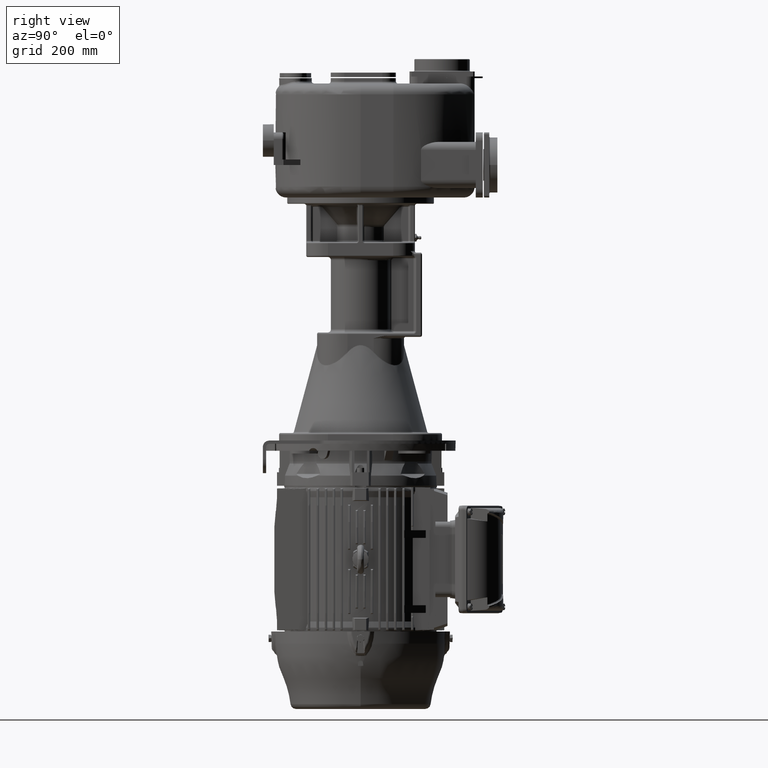
[diagram: clean part render]
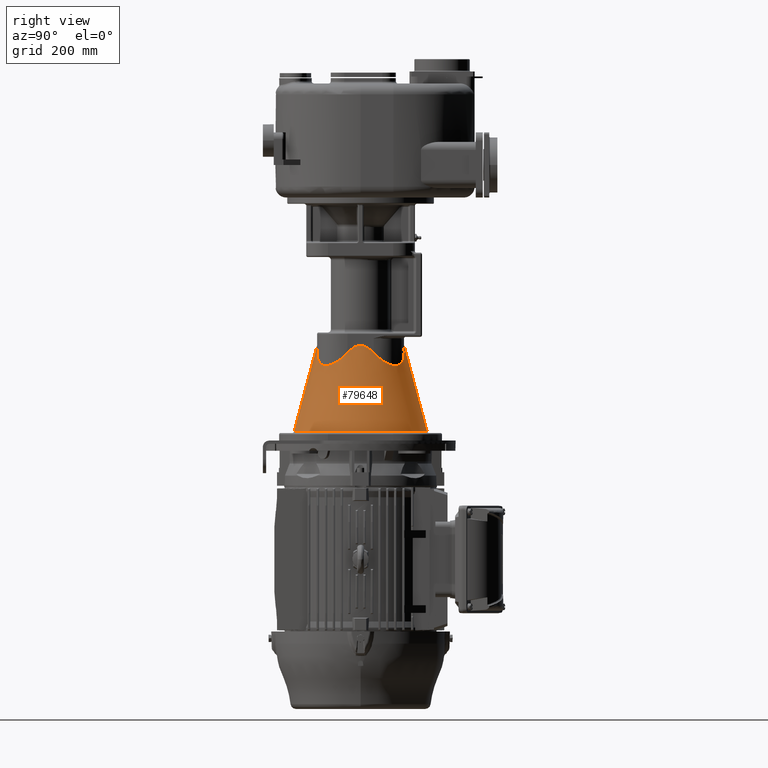
[diagram: same view with one face highlighted and labeled with its STEP entity id]
A machine part, right view. The second image highlights one B-rep face of the part: STEP entity #79648.
In plain terms, the highlighted conical surface has half-angle 15 deg.
Its self-contained STEP definition (entity closure, byte-faithful):
#24044=CARTESIAN_POINT('',(-1.898481759786E-14,1.58E2,-5.362764571353E2));
#24045=DIRECTION('',(0.E0,0.E0,1.E0));
#24046=DIRECTION('',(2.376209689192E-1,-9.713579541703E-1,0.E0));
#24047=AXIS2_PLACEMENT_3D('',#24044,#24045,#24046);
#24085=CARTESIAN_POINT('',(-3.750284373163E-14,2.381022225205E2,
-3.773500949365E2));
#24388=DIRECTION('',(0.E0,2.588190451061E-1,9.659258262881E-1));
#24389=VECTOR('',#24388,1.645326772238E2);
#24390=CARTESIAN_POINT('',(0.E0,3.531358707165E1,-5.362764571353E2));
#24391=LINE('',#24390,#24389);
#24392=CARTESIAN_POINT('',(2.319506396796E1,7.778373711082E1,
-3.900399315817E2));
#24393=CARTESIAN_POINT('',(2.288359843523E1,7.778661370874E1,
-3.897067289652E2));
#24394=CARTESIAN_POINT('',(2.226863818762E1,7.779220502480E1,
-3.890611301452E2));
#24395=CARTESIAN_POINT('',(2.137324140060E1,7.780009239633E1,
-3.881557259198E2));
#24396=CARTESIAN_POINT('',(2.050004827563E1,7.780753607654E1,
-3.873058945816E2));
#24397=CARTESIAN_POINT('',(1.964856931573E1,7.781455187850E1,
-3.865090249327E2));
#24398=CARTESIAN_POINT('',(1.881811140830E1,7.782115765770E1,
-3.857623363367E2));
#24399=CARTESIAN_POINT('',(1.800717068037E1,7.782737707550E1,
-3.850625046679E2));
#24400=CARTESIAN_POINT('',(1.721497222698E1,7.783322727207E1,
-3.844070239507E2));
#24401=CARTESIAN_POINT('',(1.644044440833E1,7.783872706077E1,
-3.837932733923E2));
#24402=CARTESIAN_POINT('',(1.568268036622E1,7.784389316103E1,
-3.832189200329E2));
#24403=CARTESIAN_POINT('',(1.494077587742E1,7.784874167591E1,
-3.826817647559E2));
#24404=CARTESIAN_POINT('',(1.421386435068E1,7.785328777749E1,
-3.821797665888E2));
#24405=CARTESIAN_POINT('',(1.350111279408E1,7.785754575579E1,
-3.817110299790E2));
#24406=CARTESIAN_POINT('',(1.280171576461E1,7.786152905448E1,
-3.812737936328E2));
#24407=CARTESIAN_POINT('',(1.211489612809E1,7.786525027638E1,
-3.808664241492E2));
#24408=CARTESIAN_POINT('',(1.143990248715E1,7.786872119480E1,
-3.804874079932E2));
#24409=CARTESIAN_POINT('',(1.077600792649E1,7.787195280823E1,
-3.801353446267E2));
#24410=CARTESIAN_POINT('',(1.012250753636E1,7.787495539918E1,
-3.798089394529E2));
#24411=CARTESIAN_POINT('',(9.478717047014E0,7.787773853977E1,
-3.795069980713E2));
#24412=CARTESIAN_POINT('',(8.843971320534E0,7.788031110969E1,
-3.792284208210E2));
#24413=CARTESIAN_POINT('',(8.217622980455E0,7.788268131483E1,
-3.789721977943E2));
#24414=CARTESIAN_POINT('',(7.599041007341E0,7.788485669848E1,
-3.787374042576E2));
#24415=CARTESIAN_POINT('',(6.987610053467E0,7.788684419868E1,
-3.785231965037E2));
#24416=CARTESIAN_POINT('',(6.382728527638E0,7.788865017662E1,
-3.783288077016E2));
#24417=CARTESIAN_POINT('',(5.783807710785E0,7.789028041059E1,
-3.781535446081E2));
#24418=CARTESIAN_POINT('',(5.190269569584E0,7.789174011402E1,
-3.779967841122E2));
#24419=CARTESIAN_POINT('',(4.601547002466E0,7.789303394111E1,
-3.778579709856E2));
#24420=CARTESIAN_POINT('',(4.017084441943E0,7.789416600345E1,
-3.777366151512E2));
#24421=CARTESIAN_POINT('',(3.436319602490E0,7.789513989709E1,
-3.776322874809E2));
#24422=CARTESIAN_POINT('',(2.858749675755E0,7.789595869338E1,
-3.775446265706E2));
#24423=CARTESIAN_POINT('',(2.283741555897E0,7.789662515704E1,
-3.774733127190E2));
#24424=CARTESIAN_POINT('',(1.710935328609E0,7.789714119506E1,
-3.774181163803E2));
#24425=CARTESIAN_POINT('',(1.139637366501E0,7.789750873704E1,
-3.773788219682E2));
#24426=CARTESIAN_POINT('',(5.691455433598E-1,7.789772876202E1,
-3.773553004476E2));
#24427=CARTESIAN_POINT('',(1.896066888692E-1,7.789777746899E1,
-3.773500950132E2));
#24428=CARTESIAN_POINT('',(2.926700974624E-14,7.789777747946E1,
-3.773500949365E2));
#24430=CARTESIAN_POINT('',(8.021626288916E1,1.348049360320E2,
-3.900399315817E2));
#24431=CARTESIAN_POINT('',(8.022007583366E1,1.343920820538E2,
-3.904815983195E2));
#24432=CARTESIAN_POINT('',(8.021860118358E1,1.335713561968E2,
-3.913481293245E2));
#24433=CARTESIAN_POINT('',(8.019013601445E1,1.323569917910E2,
-3.925973797957E2));
#24434=CARTESIAN_POINT('',(8.013644375145E1,1.311590206354E2,
-3.937981059423E2));
#24435=CARTESIAN_POINT('',(8.005852826009E1,1.299779153036E2,
-3.949514131168E2));
#24436=CARTESIAN_POINT('',(7.995738203444E1,1.288139593924E2,
-3.960585546237E2));
#24437=CARTESIAN_POINT('',(7.983395245576E1,1.276672081526E2,
-3.971209356112E2));
#24438=CARTESIAN_POINT('',(7.968916954858E1,1.265378098182E2,
-3.981398092186E2));
#24439=CARTESIAN_POINT('',(7.952392668494E1,1.254258013408E2,
-3.991164715815E2));
#24440=CARTESIAN_POINT('',(7.933908760887E1,1.243312028670E2,
-4.000521727107E2));
#24441=CARTESIAN_POINT('',(7.913548336963E1,1.232539926920E2,
-4.009481417145E2));
#24442=CARTESIAN_POINT('',(7.891391194714E1,1.221941154165E2,
-4.018055798083E2));
#24443=CARTESIAN_POINT('',(7.867513804119E1,1.211514849533E2,
-4.026256588856E2));
#24444=CARTESIAN_POINT('',(7.841989245632E1,1.201259858542E2,
-4.034095212799E2));
#24445=CARTESIAN_POINT('',(7.814887208069E1,1.191174765600E2,
-4.041582781104E2));
#24446=CARTESIAN_POINT('',(7.786273983987E1,1.181257918931E2,
-4.048730081957E2));
#24447=CARTESIAN_POINT('',(7.756212477343E1,1.171507451513E2,
-4.055547576539E2));
#24448=CARTESIAN_POINT('',(7.724762220147E1,1.161921302838E2,
-4.062045393188E2));
#24449=CARTESIAN_POINT('',(7.691979397759E1,1.152497240137E2,
-4.068233321848E2));
#24450=CARTESIAN_POINT('',(7.657916883215E1,1.143232878749E2,
-4.074120809636E2));
#24451=CARTESIAN_POINT('',(7.622624278928E1,1.134125701563E2,
-4.079716957382E2));
#24452=CARTESIAN_POINT('',(7.586147970929E1,1.125173079079E2,
-4.085030516029E2));
#24453=CARTESIAN_POINT('',(7.548531192713E1,1.116372288387E2,
-4.090069884960E2));
#24454=CARTESIAN_POINT('',(7.509814073538E1,1.107720526622E2,
-4.094843113467E2));
#24455=CARTESIAN_POINT('',(7.470033703046E1,1.099214927347E2,
-4.099357899876E2));
#24456=CARTESIAN_POINT('',(7.429224196354E1,1.090852575256E2,
-4.103621591879E2));
#24457=CARTESIAN_POINT('',(7.387416763673E1,1.082630520444E2,
-4.107641187192E2));
#24458=CARTESIAN_POINT('',(7.344639779184E1,1.074545791527E2,
-4.111423334560E2));
#24459=CARTESIAN_POINT('',(7.300918875674E1,1.066595411478E2,
-4.114974335082E2));
#24460=CARTESIAN_POINT('',(7.256277002854E1,1.058776406176E2,
-4.118300145917E2));
#24461=CARTESIAN_POINT('',(7.210734499484E1,1.051085815588E2,
-4.121406381824E2));
#24462=CARTESIAN_POINT('',(7.164309166646E1,1.043520704148E2,
-4.124298317485E2));
#24463=CARTESIAN_POINT('',(7.117016343013E1,1.036078170866E2,
-4.126980889941E2));
#24464=CARTESIAN_POINT('',(7.068868977130E1,1.028755358547E2,
-4.129458701021E2));
#24465=CARTESIAN_POINT('',(7.019877694195E1,1.021549461660E2,
-4.131736020527E2));
#24466=CARTESIAN_POINT('',(6.970050908823E1,1.014457739536E2,
-4.133816789439E2));
#24467=CARTESIAN_POINT('',(6.919394846980E1,1.007477517973E2,
-4.135704622508E2));
#24468=CARTESIAN_POINT('',(6.867913635031E1,1.000606199527E2,
-4.137402810254E2));
#24469=CARTESIAN_POINT('',(6.815609356815E1,9.938412693078E1,
-4.138914321379E2));
#24470=CARTESIAN_POINT('',(6.762482117481E1,9.871803015419E1,
-4.140241805170E2));
#24471=CARTESIAN_POINT('',(6.708530126628E1,9.806209685983E1,
-4.141387592692E2));
#24472=CARTESIAN_POINT('',(6.653749756530E1,9.741610455726E1,
-4.142353701226E2));
#24473=CARTESIAN_POINT('',(6.598135605583E1,9.677984166623E1,
-4.143141835617E2));
#24474=CARTESIAN_POINT('',(6.541680547209E1,9.615310803480E1,
-4.143753388366E2));
#24475=CARTESIAN_POINT('',(6.484375783916E1,9.553571545899E1,
-4.144189441105E2));
#24476=CARTESIAN_POINT('',(6.426210909684E1,9.492748831756E1,
-4.144450765255E2));
#24477=CARTESIAN_POINT('',(6.367173979467E1,9.432826426090E1,
-4.144537822714E2));
#24478=CARTESIAN_POINT('',(6.307251563731E1,9.373789473972E1,
-4.144450766414E2));
#24479=CARTESIAN_POINT('',(6.246428820818E1,9.315624561196E1,
-4.144189443220E2));
#24480=CARTESIAN_POINT('',(6.184689508691E1,9.258319737604E1,
-4.143753391059E2));
#24481=CARTESIAN_POINT('',(6.122016082625E1,9.201864614922E1,
-4.143141838462E2));
#24482=CARTESIAN_POINT('',(6.058389736598E1,9.146250408619E1,
-4.142353703885E2));
#24483=CARTESIAN_POINT('',(5.993790450299E1,9.091469986739E1,
-4.141387594946E2));
#24484=CARTESIAN_POINT('',(5.928197071536E1,9.037517952529E1,
-4.140241806838E2));
#24485=CARTESIAN_POINT('',(5.861587339906E1,8.984390668601E1,
-4.138914322126E2));
#24486=CARTESIAN_POINT('',(5.793937977482E1,8.932086343712E1,
-4.137402809673E2));
#24487=CARTESIAN_POINT('',(5.725224738088E1,8.880605092036E1,
-4.135704620417E2));
#24488=CARTESIAN_POINT('',(5.655422474E1,8.829948997601E1,-4.133816785771E2));
#24489=CARTESIAN_POINT('',(5.584505204860E1,8.780122182033E1,
-4.131736015130E2));
#24490=CARTESIAN_POINT('',(5.512446189010E1,8.731130871724E1,
-4.129458693676E2));
#24491=CARTESIAN_POINT('',(5.439218011244E1,8.682983475561E1,
-4.126980880189E2));
#24492=CARTESIAN_POINT('',(5.364792629013E1,8.635690627270E1,
-4.124298305278E2));
#24493=CARTESIAN_POINT('',(5.289141469286E1,8.589265274272E1,
-4.121406367110E2));
#24494=CARTESIAN_POINT('',(5.212235518029E1,8.543722752476E1,
-4.118300128528E2));
#24495=CARTESIAN_POINT('',(5.134045418111E1,8.499080862250E1,
-4.114974314750E2));
#24496=CARTESIAN_POINT('',(5.054541571261E1,8.455359943554E1,
-4.111423311106E2));
#24497=CARTESIAN_POINT('',(4.973694240352E1,8.412582948089E1,
-4.107641160656E2));
#24498=CARTESIAN_POINT('',(4.891473657126E1,8.370775509363E1,
-4.103621562419E2));
#24499=CARTESIAN_POINT('',(4.807850103110E1,8.329965998896E1,
-4.099357867455E2));
#24500=CARTESIAN_POINT('',(4.722794080122E1,8.290185627228E1,
-4.094843078101E2));
#24501=CARTESIAN_POINT('',(4.636276437545E1,8.251468510358E1,
-4.090069846821E2));
#24502=CARTESIAN_POINT('',(4.548268511107E1,8.213851737616E1,
-4.085030475332E2));
#24503=CARTESIAN_POINT('',(4.458742271125E1,8.177375437551E1,
-4.079716914306E2));
#24504=CARTESIAN_POINT('',(4.367670488140E1,8.142082843279E1,
-4.074120764364E2));
#24505=CARTESIAN_POINT('',(4.275026869425E1,8.108020341402E1,
-4.068233274734E2));
#24506=CARTESIAN_POINT('',(4.180786240940E1,8.075237532963E1,
-4.062045344431E2));
#24507=CARTESIAN_POINT('',(4.084924755735E1,8.043787290743E1,
-4.055547526327E2));
#24508=CARTESIAN_POINT('',(3.987420090456E1,8.013725801228E1,
-4.048730030810E2));
#24509=CARTESIAN_POINT('',(3.888251641242E1,7.985112596312E1,
-4.041582729671E2));
#24510=CARTESIAN_POINT('',(3.787400731828E1,7.958010577833E1,
-4.034095161344E2));
#24511=CARTESIAN_POINT('',(3.684850842585E1,7.932486037902E1,
-4.026256537488E2));
#24512=CARTESIAN_POINT('',(3.580587830311E1,7.908608668047E1,
-4.018055747946E2));
#24513=CARTESIAN_POINT('',(3.474600148284E1,7.886451547431E1,
-4.009481369324E2));
#24514=CARTESIAN_POINT('',(3.366879173903E1,7.866091142924E1,
-4.000521681580E2));
#24515=CARTESIAN_POINT('',(3.257419371901E1,7.847607253471E1,
-3.991164672969E2));
#24516=CARTESIAN_POINT('',(3.146218589589E1,7.831082986321E1,
-3.981398053975E2));
#24517=CARTESIAN_POINT('',(3.033278825323E1,7.816604712562E1,
-3.971209323196E2));
#24518=CARTESIAN_POINT('',(2.918603778747E1,7.804261769641E1,
-3.960585519696E2));
#24519=CARTESIAN_POINT('',(2.802208235506E1,7.794147156256E1,
-3.949514108588E2));
#24520=CARTESIAN_POINT('',(2.684097725984E1,7.786355613549E1,
-3.937981038554E2));
#24521=CARTESIAN_POINT('',(2.564300680926E1,7.780986394241E1,
-3.925973783691E2));
#24522=CARTESIAN_POINT('',(2.442864300406E1,7.778139881212E1,
-3.913481284834E2));
#24523=CARTESIAN_POINT('',(2.360791766869E1,7.777992416688E1,
-3.904815980262E2));
#24524=CARTESIAN_POINT('',(2.319506396796E1,7.778373711082E1,
-3.900399315817E2));
#24526=CARTESIAN_POINT('',(8.021626288916E1,1.811950639679E2,
-3.900399315817E2));
#24527=CARTESIAN_POINT('',(8.021333414240E1,1.808779517766E2,
-3.897006882385E2));
#24528=CARTESIAN_POINT('',(8.020764450838E1,1.802519947013E2,
-3.890437755973E2));
#24529=CARTESIAN_POINT('',(8.019962846198E1,1.793411783943E2,
-3.881237381848E2));
#24530=CARTESIAN_POINT('',(8.019207146435E1,1.784533469403E2,
-3.872611802570E2));
#24531=CARTESIAN_POINT('',(8.018495987113E1,1.775883583960E2,
-3.864536913616E2));
#24532=CARTESIAN_POINT('',(8.017827145508E1,1.767450909241E2,
-3.856979586973E2));
#24533=CARTESIAN_POINT('',(8.017198303159E1,1.759221657894E2,
-3.849906701178E2));
#24534=CARTESIAN_POINT('',(8.016607580253E1,1.751186853536E2,
-3.843291074846E2));
#24535=CARTESIAN_POINT('',(8.016052992694E1,1.743335295908E2,
-3.837105216463E2));
#24536=CARTESIAN_POINT('',(8.015532766168E1,1.735657437250E2,
-3.831324589751E2));
#24537=CARTESIAN_POINT('',(8.015045203977E1,1.728143682111E2,
-3.825926052502E2));
#24538=CARTESIAN_POINT('',(8.014588711932E1,1.720784906755E2,
-3.820888207217E2));
#24539=CARTESIAN_POINT('',(8.014161787749E1,1.713572314723E2,
-3.816191189022E2));
#24540=CARTESIAN_POINT('',(8.013763019648E1,1.706497419955E2,
-3.811816579458E2));
#24541=CARTESIAN_POINT('',(8.013391085805E1,1.699552036087E2,
-3.807747323357E2));
#24542=CARTESIAN_POINT('',(8.013044751593E1,1.692728247173E2,
-3.803967641229E2));
#24543=CARTESIAN_POINT('',(8.012722868766E1,1.686018402283E2,
-3.800462961166E2));
#24544=CARTESIAN_POINT('',(8.012424366697E1,1.679415089626E2,
-3.797219841319E2));
#24545=CARTESIAN_POINT('',(8.012148249469E1,1.672911115978E2,
-3.794225903709E2));
#24546=CARTESIAN_POINT('',(8.011893594853E1,1.666499491646E2,
-3.791469776350E2));
#24547=CARTESIAN_POINT('',(8.011659552540E1,1.660173415225E2,
-3.788941039393E2));
#24548=CARTESIAN_POINT('',(8.011445342717E1,1.653926258478E2,
-3.786630175811E2));
#24549=CARTESIAN_POINT('',(8.011250252864E1,1.647751556090E2,
-3.784528527145E2));
#24550=CARTESIAN_POINT('',(8.011073629741E1,1.641642994020E2,
-3.782628250190E2));
#24551=CARTESIAN_POINT('',(8.010914881924E1,1.635594388295E2,
-3.780922278655E2));
#24552=CARTESIAN_POINT('',(8.010773478302E1,1.629599674262E2,
-3.779404290709E2));
#24553=CARTESIAN_POINT('',(8.010648947203E1,1.623652894245E2,
-3.778068679428E2));
#24554=CARTESIAN_POINT('',(8.010540874931E1,1.617748185946E2,
-3.776910526450E2));
#24555=CARTESIAN_POINT('',(8.010448905520E1,1.611879770962E2,
-3.775925579219E2));
#24556=CARTESIAN_POINT('',(8.010372729881E1,1.606041946906E2,
-3.775110227639E2));
#24557=CARTESIAN_POINT('',(8.010312091235E1,1.600229070438E2,
-3.774461488333E2));
#24558=CARTESIAN_POINT('',(8.010266786131E1,1.594435546589E2,
-3.773976991553E2));
#24559=CARTESIAN_POINT('',(8.010236663806E1,1.588655818261E2,
-3.773654970161E2));
#24560=CARTESIAN_POINT('',(8.010221625494E1,1.582884355718E2,
-3.773494251277E2));
#24561=CARTESIAN_POINT('',(8.010221625482E1,1.577115646258E2,
-3.773494251246E2));
#24562=CARTESIAN_POINT('',(8.010236663787E1,1.571344183717E2,
-3.773654970074E2));
#24563=CARTESIAN_POINT('',(8.010266786112E1,1.565564455393E2,
-3.773976991413E2));
#24564=CARTESIAN_POINT('',(8.010312091220E1,1.559770931551E2,
-3.774461488140E2));
#24565=CARTESIAN_POINT('',(8.010372729867E1,1.553958055091E2,
-3.775110227392E2));
#24566=CARTESIAN_POINT('',(8.010448905501E1,1.548120231045E2,
-3.775925578914E2));
#24567=CARTESIAN_POINT('',(8.010540874894E1,1.542251816072E2,
-3.776910526082E2));
#24568=CARTESIAN_POINT('',(8.010648947153E1,1.536347107785E2,
-3.778068678997E2));
#24569=CARTESIAN_POINT('',(8.010773478250E1,1.530400327783E2,
-3.779404290218E2));
#24570=CARTESIAN_POINT('',(8.010914881873E1,1.524405613769E2,
-3.780922278103E2));
#24571=CARTESIAN_POINT('',(8.011073629689E1,1.518357008066E2,
-3.782628249573E2));
#24572=CARTESIAN_POINT('',(8.011250252807E1,1.512248446019E2,
-3.784528526461E2));
#24573=CARTESIAN_POINT('',(8.011445342648E1,1.506073743654E2,
-3.786630175055E2));
#24574=CARTESIAN_POINT('',(8.011659552457E1,1.499826586930E2,
-3.788941038561E2));
#24575=CARTESIAN_POINT('',(8.011893594766E1,1.493500510537E2,
-3.791469775443E2));
#24576=CARTESIAN_POINT('',(8.012148249378E1,1.487088886238E2,
-3.794225902724E2));
#24577=CARTESIAN_POINT('',(8.012424366601E1,1.480584912625E2,
-3.797219840249E2));
#24578=CARTESIAN_POINT('',(8.012722868660E1,1.473981600004E2,
-3.800462960007E2));
#24579=CARTESIAN_POINT('',(8.013044751475E1,1.467271755153E2,
-3.803967639977E2));
#24580=CARTESIAN_POINT('',(8.013391085682E1,1.460447966275E2,
-3.807747322011E2));
#24581=CARTESIAN_POINT('',(8.013763019522E1,1.453502582451E2,
-3.811816578011E2));
#24582=CARTESIAN_POINT('',(8.014161787613E1,1.446427687731E2,
-3.816191187466E2));
#24583=CARTESIAN_POINT('',(8.014588711781E1,1.439215095754E2,
-3.820888205541E2));
#24584=CARTESIAN_POINT('',(8.015045203806E1,1.431856320453E2,
-3.825926050700E2));
#24585=CARTESIAN_POINT('',(8.015532765978E1,1.424342565351E2,
-3.831324587832E2));
#24586=CARTESIAN_POINT('',(8.016052992509E1,1.416664706718E2,
-3.837105214439E2));
#24587=CARTESIAN_POINT('',(8.016607580076E1,1.408813149176E2,
-3.843291072671E2));
#24588=CARTESIAN_POINT('',(8.017198302953E1,1.400778345062E2,
-3.849906698695E2));
#24589=CARTESIAN_POINT('',(8.017827145315E1,1.392549093551E2,
-3.856979584539E2));
#24590=CARTESIAN_POINT('',(8.018495986813E1,1.384116419514E2,
-3.864536910420E2));
#24591=CARTESIAN_POINT('',(8.019207146239E1,1.375466532612E2,
-3.872611800646E2));
#24592=CARTESIAN_POINT('',(8.019962845759E1,1.366588220491E2,
-3.881237377461E2));
#24593=CARTESIAN_POINT('',(8.020764450428E1,1.357480057202E2,
-3.890437751591E2));
#24594=CARTESIAN_POINT('',(8.021333414088E1,1.351220483974E2,
-3.897006880530E2));
#24595=CARTESIAN_POINT('',(8.021626288916E1,1.348049360320E2,
-3.900399315817E2));
#24597=CARTESIAN_POINT('',(2.319506396795E1,2.382162628892E2,
-3.900399315816E2));
#24598=CARTESIAN_POINT('',(2.360791789286E1,2.382200758331E2,
-3.904815982624E2));
#24599=CARTESIAN_POINT('',(2.442864363548E1,2.382186011847E2,
-3.913481291486E2));
#24600=CARTESIAN_POINT('',(2.564300785537E1,2.381901360250E2,
-3.925973794355E2));
#24601=CARTESIAN_POINT('',(2.684097878559E1,2.381364437833E2,
-3.937981053694E2));
#24602=CARTESIAN_POINT('',(2.802208420891E1,2.380585282975E2,
-3.949514126472E2));
#24603=CARTESIAN_POINT('',(2.918604006451E1,2.379573820870E2,
-3.960585541125E2));
#24604=CARTESIAN_POINT('',(3.033279143183E1,2.378339525051E2,
-3.971209352316E2));
#24605=CARTESIAN_POINT('',(3.146218969533E1,2.376891696152E2,
-3.981398087849E2));
#24606=CARTESIAN_POINT('',(3.257419812847E1,2.375239267699E2,
-3.991164711235E2));
#24607=CARTESIAN_POINT('',(3.366879668601E1,2.373390876893E2,
-4.000521723341E2));
#24608=CARTESIAN_POINT('',(3.474600689760E1,2.371354834512E2,
-4.009481413780E2));
#24609=CARTESIAN_POINT('',(3.580588412345E1,2.369139120474E2,
-4.018055794406E2));
#24610=CARTESIAN_POINT('',(3.684851458672E1,2.366751381512E2,
-4.026256585284E2));
#24611=CARTESIAN_POINT('',(3.787401375671E1,2.364198925574E2,
-4.034095209872E2));
#24612=CARTESIAN_POINT('',(3.888252306691E1,2.361488721846E2,
-4.041582778375E2));
#24613=CARTESIAN_POINT('',(3.987420771518E1,2.358627399568E2,
-4.048730079178E2));
#24614=CARTESIAN_POINT('',(4.084925446594E1,2.355621248953E2,
-4.055547573904E2));
#24615=CARTESIAN_POINT('',(4.180786935968E1,2.352476223220E2,
-4.062045390810E2));
#24616=CARTESIAN_POINT('',(4.275027563224E1,2.349197941041E2,
-4.068233319558E2));
#24617=CARTESIAN_POINT('',(4.367671175558E1,2.345791689716E2,
-4.074120807325E2));
#24618=CARTESIAN_POINT('',(4.458742947289E1,2.342262429366E2,
-4.079716955143E2));
#24619=CARTESIAN_POINT('',(4.548269171296E1,2.338614798674E2,
-4.085030513818E2));
#24620=CARTESIAN_POINT('',(4.636277077311E1,2.334853120968E2,
-4.090069882774E2));
#24621=CARTESIAN_POINT('',(4.722794695301E1,2.330981409115E2,
-4.094843111384E2));
#24622=CARTESIAN_POINT('',(4.807850689805E1,2.327003372061E2,
-4.099357897968E2));
#24623=CARTESIAN_POINT('',(4.891474211711E1,2.322922421416E2,
-4.103621590097E2));
#24624=CARTESIAN_POINT('',(4.973694759516E1,2.318741678238E2,
-4.107641185472E2));
#24625=CARTESIAN_POINT('',(5.054542052012E1,2.314463979685E2,
-4.111423333062E2));
#24626=CARTESIAN_POINT('',(5.134045857617E1,2.310091889118E2,
-4.114974333884E2));
#24627=CARTESIAN_POINT('',(5.212235913709E1,2.305627701714E2,
-4.118300144904E2));
#24628=CARTESIAN_POINT('',(5.289141818864E1,2.301073451467E2,
-4.121406380822E2));
#24629=CARTESIAN_POINT('',(5.364792930535E1,2.296430918411E2,
-4.124298316446E2));
#24630=CARTESIAN_POINT('',(5.439218263024E1,2.291701636135E2,
-4.126980888957E2));
#24631=CARTESIAN_POINT('',(5.512446389607E1,2.286886899378E2,
-4.129458700203E2));
#24632=CARTESIAN_POINT('',(5.584505353055E1,2.281987771513E2,
-4.131736019603E2));
#24633=CARTESIAN_POINT('',(5.655422568824E1,2.277005093427E2,
-4.133816788400E2));
#24634=CARTESIAN_POINT('',(5.725224778915E1,2.271939487743E2,
-4.135704621432E2));
#24635=CARTESIAN_POINT('',(5.793937963934E1,2.266791366618E2,
-4.137402809315E2));
#24636=CARTESIAN_POINT('',(5.861587271795E1,2.261560938445E2,
-4.138914320647E2));
#24637=CARTESIAN_POINT('',(5.928196948867E1,2.256248214638E2,
-4.140241804502E2));
#24638=CARTESIAN_POINT('',(5.993790273280E1,2.250853016060E2,
-4.141387592023E2));
#24639=CARTESIAN_POINT('',(6.058389505596E1,2.245374978976E2,
-4.142353700671E2));
#24640=CARTESIAN_POINT('',(6.122015799324E1,2.239813563595E2,
-4.143141835270E2));
#24641=CARTESIAN_POINT('',(6.184689172063E1,2.234168056968E2,
-4.143753388174E2));
#24642=CARTESIAN_POINT('',(6.246428433198E1,2.228437580353E2,
-4.144189440973E2));
#24643=CARTESIAN_POINT('',(6.307251140463E1,2.222621093662E2,
-4.144450765172E2));
#24644=CARTESIAN_POINT('',(6.367173548984E1,2.216717400440E2,
-4.144537822715E2));
#24645=CARTESIAN_POINT('',(6.426210500075E1,2.210725159050E2,
-4.144450766495E2));
#24646=CARTESIAN_POINT('',(6.484375420613E1,2.204642884021E2,
-4.144189443345E2));
#24647=CARTESIAN_POINT('',(6.541680241331E1,2.198468953161E2,
-4.143753391238E2));
#24648=CARTESIAN_POINT('',(6.598135356123E1,2.192201611509E2,
-4.143141838792E2));
#24649=CARTESIAN_POINT('',(6.653749559724E1,2.185838977346E2,
-4.142353704415E2));
#24650=CARTESIAN_POINT('',(6.708529980851E1,2.179379048916E2,
-4.141387595585E2));
#24651=CARTESIAN_POINT('',(6.762482019933E1,2.172819710557E2,
-4.140241807475E2));
#24652=CARTESIAN_POINT('',(6.815609305006E1,2.166158737344E2,
-4.138914322825E2));
#24653=CARTESIAN_POINT('',(6.867913626368E1,2.159393801667E2,
-4.137402810575E2));
#24654=CARTESIAN_POINT('',(6.919394878732E1,2.152522477779E2,
-4.135704621451E2));
#24655=CARTESIAN_POINT('',(6.970050978092E1,2.145542250822E2,
-4.133816786764E2));
#24656=CARTESIAN_POINT('',(7.019877797998E1,2.138450523380E2,
-4.131736016011E2));
#24657=CARTESIAN_POINT('',(7.068869112485E1,2.131244621265E2,
-4.129458694452E2));
#24658=CARTESIAN_POINT('',(7.117016506950E1,2.123921803825E2,
-4.126980881127E2));
#24659=CARTESIAN_POINT('',(7.164309356118E1,2.116479265563E2,
-4.124298306265E2));
#24660=CARTESIAN_POINT('',(7.210734711365E1,2.108914149318E2,
-4.121406368058E2));
#24661=CARTESIAN_POINT('',(7.256277234013E1,2.101223554123E2,
-4.118300129486E2));
#24662=CARTESIAN_POINT('',(7.300919122991E1,2.093404544438E2,
-4.114974315890E2));
#24663=CARTESIAN_POINT('',(7.344640039543E1,2.085454160257E2,
-4.111423312539E2));
#24664=CARTESIAN_POINT('',(7.387417033947E1,2.077369427495E2,
-4.107641162307E2));
#24665=CARTESIAN_POINT('',(7.429224473538E1,2.069147369144E2,
-4.103621564130E2));
#24666=CARTESIAN_POINT('',(7.470033984187E1,2.060785013848E2,
-4.099357869293E2));
#24667=CARTESIAN_POINT('',(7.509814355759E1,2.052279411729E2,
-4.094843080113E2));
#24668=CARTESIAN_POINT('',(7.548531473232E1,2.043627647509E2,
-4.090069848934E2));
#24669=CARTESIAN_POINT('',(7.586148247077E1,2.034826854780E2,
-4.085030477472E2));
#24670=CARTESIAN_POINT('',(7.622624548174E1,2.025874230704E2,
-4.079716916475E2));
#24671=CARTESIAN_POINT('',(7.657917143202E1,2.016767052397E2,
-4.074120766604E2));
#24672=CARTESIAN_POINT('',(7.691979646332E1,2.007502690375E2,
-4.068233276954E2));
#24673=CARTESIAN_POINT('',(7.724762455328E1,1.998078627556E2,
-4.062045346741E2));
#24674=CARTESIAN_POINT('',(7.756212697378E1,1.988492479303E2,
-4.055547528894E2));
#24675=CARTESIAN_POINT('',(7.786274187369E1,1.978742012867E2,
-4.048730033520E2));
#24676=CARTESIAN_POINT('',(7.814887393549E1,1.968825167765E2,
-4.041582732333E2));
#24677=CARTESIAN_POINT('',(7.841989412263E1,1.958740076995E2,
-4.034095164212E2));
#24678=CARTESIAN_POINT('',(7.867513951262E1,1.948485088791E2,
-4.026256541007E2));
#24679=CARTESIAN_POINT('',(7.891391322063E1,1.938058787567E2,
-4.018055751573E2));
#24680=CARTESIAN_POINT('',(7.913548444515E1,1.927460018878E2,
-4.009481372645E2));
#24681=CARTESIAN_POINT('',(7.933908849095E1,1.916687921824E2,
-4.000521685315E2));
#24682=CARTESIAN_POINT('',(7.952392738076E1,1.905741942472E2,
-3.991164677527E2));
#24683=CARTESIAN_POINT('',(7.968917007050E1,1.894621863801E2,
-3.981398058292E2));
#24684=CARTESIAN_POINT('',(7.983395282512E1,1.883327886678E2,
-3.971209326982E2));
#24685=CARTESIAN_POINT('',(7.995738225093E1,1.871860383318E2,
-3.960585524820E2));
#24686=CARTESIAN_POINT('',(8.005852839983E1,1.860220828447E2,
-3.949514113305E2));
#24687=CARTESIAN_POINT('',(8.013644383246E1,1.848409778422E2,
-3.937981044315E2));
#24688=CARTESIAN_POINT('',(8.019013604685E1,1.836430071675E2,
-3.925973787339E2));
#24689=CARTESIAN_POINT('',(8.021860118674E1,1.824286431771E2,
-3.913481286647E2));
#24690=CARTESIAN_POINT('',(8.022007583364E1,1.816079177242E2,
-3.904815980856E2));
#24691=CARTESIAN_POINT('',(8.021626288916E1,1.811950639679E2,
-3.900399315817E2));
#24693=CARTESIAN_POINT('',(-3.750284373163E-14,2.381022225205E2,
-3.773500949365E2));
#24694=CARTESIAN_POINT('',(1.896745422574E-1,2.381022225331E2,
-3.773500950281E2));
#24695=CARTESIAN_POINT('',(5.693488262776E-1,2.381022712695E2,
-3.773553041526E2));
#24696=CARTESIAN_POINT('',(1.140043849340E0,2.381024914542E2,
-3.773788424753E2));
#24697=CARTESIAN_POINT('',(1.711542665271E0,2.381028592559E2,
-3.774181647001E2));
#24698=CARTESIAN_POINT('',(2.284547715044E0,2.381033756572E2,
-3.774733997592E2));
#24699=CARTESIAN_POINT('',(2.859751028881E0,2.381040425819E2,
-3.775447629125E2));
#24700=CARTESIAN_POINT('',(3.437512051459E0,2.381048619338E2,
-3.776324833850E2));
#24701=CARTESIAN_POINT('',(4.018462860015E0,2.381058364720E2,
-3.777368804291E2));
#24702=CARTESIAN_POINT('',(4.603105374684E0,2.381069692647E2,
-3.778583149264E2));
#24703=CARTESIAN_POINT('',(5.192000970450E0,2.381082639030E2,
-3.779972153910E2));
#24704=CARTESIAN_POINT('',(5.785704225281E0,2.381097244899E2,
-3.781540711572E2));
#24705=CARTESIAN_POINT('',(6.384781267909E0,2.381113556708E2,
-3.783294366120E2));
#24706=CARTESIAN_POINT('',(6.989809093199E0,2.381131626490E2,
-3.785239338950E2));
#24707=CARTESIAN_POINT('',(7.601375353353E0,2.381151511918E2,
-3.787382551483E2));
#24708=CARTESIAN_POINT('',(8.220080527451E0,2.381173276481E2,
-3.789731659564E2));
#24709=CARTESIAN_POINT('',(8.846538777186E0,2.381196989443E2,
-3.792295086177E2));
#24710=CARTESIAN_POINT('',(9.481379892456E0,2.381222726076E2,
-3.795082062738E2));
#24711=CARTESIAN_POINT('',(1.012524996618E1,2.381250568264E2,
-3.798102670498E2));
#24712=CARTESIAN_POINT('',(1.077881278586E1,2.381280604612E2,
-3.801367886125E2));
#24713=CARTESIAN_POINT('',(1.144275120051E1,2.381312930635E2,
-3.804889631363E2));
#24714=CARTESIAN_POINT('',(1.211776862095E1,2.381347648933E2,
-3.808680827355E2));
#24715=CARTESIAN_POINT('',(1.280459038309E1,2.381384869248E2,
-3.812755451877E2));
#24716=CARTESIAN_POINT('',(1.350396618463E1,2.381424709016E2,
-3.817128609268E2));
#24717=CARTESIAN_POINT('',(1.421667139166E1,2.381467293959E2,
-3.821816599320E2));
#24718=CARTESIAN_POINT('',(1.494350957810E1,2.381512758179E2,
-3.826836997046E2));
#24719=CARTESIAN_POINT('',(1.568531172837E1,2.381561244215E2,
-3.832208715733E2));
#24720=CARTESIAN_POINT('',(1.644294238146E1,2.381612903400E2,
-3.837952118929E2));
#24721=CARTESIAN_POINT('',(1.721730339439E1,2.381667896337E2,
-3.844089145249E2));
#24722=CARTESIAN_POINT('',(1.800929944553E1,2.381726389749E2,
-3.850643068707E2));
#24723=CARTESIAN_POINT('',(1.881999944978E1,2.381788571217E2,
-3.857640032672E2));
#24724=CARTESIAN_POINT('',(1.965017538096E1,2.381854611581E2,
-3.865105024535E2));
#24725=CARTESIAN_POINT('',(2.050132968843E1,2.381924746995E2,
-3.873071223088E2));
#24726=CARTESIAN_POINT('',(2.137414882244E1,2.381999155059E2,
-3.881566314375E2));
#24727=CARTESIAN_POINT('',(2.226912468559E1,2.382077993722E2,
-3.890616373333E2));
#24728=CARTESIAN_POINT('',(2.288376610013E1,2.382133878399E2,
-3.897069083329E2));
#24729=CARTESIAN_POINT('',(2.319506396795E1,2.382162628892E2,
-3.900399315816E2));
#24731=DIRECTION('',(0.E0,-2.588190451061E-1,9.659258262881E-1));
#24732=VECTOR('',#24731,1.645326772238E2);
#24733=CARTESIAN_POINT('',(-7.030587247454E-14,2.806864129284E2,
-5.362764571353E2));
#24734=LINE('',#24733,#24732);
#24740=CARTESIAN_POINT('',(-1.898481759786E-14,1.58E2,-5.362764571353E2));
#24741=DIRECTION('',(0.E0,0.E0,1.E0));
#24742=DIRECTION('',(0.E0,-1.E0,0.E0));
#24743=AXIS2_PLACEMENT_3D('',#24740,#24741,#24742);
#46349=VERTEX_POINT('',#24085);
#46351=VERTEX_POINT('',#24729);
#46354=VERTEX_POINT('',#24526);
#46355=VERTEX_POINT('',#24595);
#46358=VERTEX_POINT('',#24392);
#46359=VERTEX_POINT('',#24428);
#46366=CARTESIAN_POINT('',(-7.030587247454E-14,2.806864129284E2,
-5.362764571353E2));
#46367=VERTEX_POINT('',#46366);
#46372=CARTESIAN_POINT('',(2.915286431326E1,3.882757693343E1,
-5.362764571353E2));
#46373=VERTEX_POINT('',#46372);
#46376=CARTESIAN_POINT('',(-1.187939024026E-14,3.531358707165E1,
-5.362764571353E2));
#46377=VERTEX_POINT('',#46376);
#79626=CARTESIAN_POINT('',(-1.898481759786E-14,1.58E2,-4.568129738237E2));
#79627=DIRECTION('',(0.E0,0.E0,-1.E0));
#79628=DIRECTION('',(0.E0,-1.E0,0.E0));
#79629=AXIS2_PLACEMENT_3D('',#79626,#79627,#79628);
#79630=CONICAL_SURFACE('',#79629,1.013942367472E2,1.5E1);
#79631=ORIENTED_EDGE('',*,*,#79596,.F.);
#79633=ORIENTED_EDGE('',*,*,#79632,.F.);
#79634=ORIENTED_EDGE('',*,*,#79606,.T.);
#79636=ORIENTED_EDGE('',*,*,#79635,.F.);
#79638=ORIENTED_EDGE('',*,*,#79637,.F.);
#79640=ORIENTED_EDGE('',*,*,#79639,.F.);
#79642=ORIENTED_EDGE('',*,*,#79641,.F.);
#79644=ORIENTED_EDGE('',*,*,#79643,.F.);
#79645=ORIENTED_EDGE('',*,*,#79611,.F.);
#79646=EDGE_LOOP('',(#79631,#79633,#79634,#79636,#79638,#79640,#79642,#79644,
#79645));
#79647=FACE_OUTER_BOUND('',#79646,.F.);
#79648=ADVANCED_FACE('',(#79647),#79630,.T.);
#24048=CIRCLE('',#24047,1.226864129284E2);
#24429=B_SPLINE_CURVE_WITH_KNOTS('',3,(#24392,#24393,#24394,#24395,#24396,
#24397,#24398,#24399,#24400,#24401,#24402,#24403,#24404,#24405,#24406,#24407,
#24408,#24409,#24410,#24411,#24412,#24413,#24414,#24415,#24416,#24417,#24418,
#24419,#24420,#24421,#24422,#24423,#24424,#24425,#24426,#24427,#24428),
.UNSPECIFIED.,.F.,.F.,(4,1,1,1,1,1,1,1,1,1,1,1,1,1,1,1,1,1,1,1,1,1,1,1,1,1,1,1,
1,1,1,1,1,1,4),(0.E0,2.941176470588E-2,5.882352941176E-2,8.823529411765E-2,
1.176470588235E-1,1.470588235294E-1,1.764705882353E-1,2.058823529412E-1,
2.352941176471E-1,2.647058823529E-1,2.941176470588E-1,3.235294117647E-1,
3.529411764706E-1,3.823529411765E-1,4.117647058824E-1,4.411764705882E-1,
4.705882352941E-1,5.E-1,5.294117647059E-1,5.588235294118E-1,5.882352941176E-1,
6.176470588235E-1,6.470588235294E-1,6.764705882353E-1,7.058823529412E-1,
7.352941176471E-1,7.647058823529E-1,7.941176470588E-1,8.235294117647E-1,
8.529411764706E-1,8.823529411765E-1,9.117647058824E-1,9.411764705882E-1,
9.705882352941E-1,1.E0),.UNSPECIFIED.);
#24525=B_SPLINE_CURVE_WITH_KNOTS('',3,(#24430,#24431,#24432,#24433,#24434,
#24435,#24436,#24437,#24438,#24439,#24440,#24441,#24442,#24443,#24444,#24445,
#24446,#24447,#24448,#24449,#24450,#24451,#24452,#24453,#24454,#24455,#24456,
#24457,#24458,#24459,#24460,#24461,#24462,#24463,#24464,#24465,#24466,#24467,
#24468,#24469,#24470,#24471,#24472,#24473,#24474,#24475,#24476,#24477,#24478,
#24479,#24480,#24481,#24482,#24483,#24484,#24485,#24486,#24487,#24488,#24489,
#24490,#24491,#24492,#24493,#24494,#24495,#24496,#24497,#24498,#24499,#24500,
#24501,#24502,#24503,#24504,#24505,#24506,#24507,#24508,#24509,#24510,#24511,
#24512,#24513,#24514,#24515,#24516,#24517,#24518,#24519,#24520,#24521,#24522,
#24523,#24524),.UNSPECIFIED.,.F.,.F.,(4,1,1,1,1,1,1,1,1,1,1,1,1,1,1,1,1,1,1,1,1,
1,1,1,1,1,1,1,1,1,1,1,1,1,1,1,1,1,1,1,1,1,1,1,1,1,1,1,1,1,1,1,1,1,1,1,1,1,1,1,1,
1,1,1,1,1,1,1,1,1,1,1,1,1,1,1,1,1,1,1,1,1,1,1,1,1,1,1,1,1,1,1,4),(0.E0,
1.086956521739E-2,2.173913043478E-2,3.260869565217E-2,4.347826086957E-2,
5.434782608696E-2,6.521739130435E-2,7.608695652174E-2,8.695652173913E-2,
9.782608695652E-2,1.086956521739E-1,1.195652173913E-1,1.304347826087E-1,
1.413043478261E-1,1.521739130435E-1,1.630434782609E-1,1.739130434783E-1,
1.847826086957E-1,1.956521739130E-1,2.065217391304E-1,2.173913043478E-1,
2.282608695652E-1,2.391304347826E-1,2.5E-1,2.608695652174E-1,2.717391304348E-1,
2.826086956522E-1,2.934782608696E-1,3.043478260870E-1,3.152173913043E-1,
3.260869565217E-1,3.369565217391E-1,3.478260869565E-1,3.586956521739E-1,
3.695652173913E-1,3.804347826087E-1,3.913043478261E-1,4.021739130435E-1,
4.130434782609E-1,4.239130434783E-1,4.347826086957E-1,4.456521739130E-1,
4.565217391304E-1,4.673913043478E-1,4.782608695652E-1,4.891304347826E-1,5.E-1,
5.108695652174E-1,5.217391304348E-1,5.326086956522E-1,5.434782608696E-1,
5.543478260870E-1,5.652173913043E-1,5.760869565217E-1,5.869565217391E-1,
5.978260869565E-1,6.086956521739E-1,6.195652173913E-1,6.304347826087E-1,
6.413043478261E-1,6.521739130435E-1,6.630434782609E-1,6.739130434783E-1,
6.847826086957E-1,6.956521739130E-1,7.065217391304E-1,7.173913043478E-1,
7.282608695652E-1,7.391304347826E-1,7.5E-1,7.608695652174E-1,7.717391304348E-1,
7.826086956522E-1,7.934782608696E-1,8.043478260870E-1,8.152173913043E-1,
8.260869565217E-1,8.369565217391E-1,8.478260869565E-1,8.586956521739E-1,
8.695652173913E-1,8.804347826087E-1,8.913043478261E-1,9.021739130435E-1,
9.130434782609E-1,9.239130434783E-1,9.347826086957E-1,9.456521739130E-1,
9.565217391304E-1,9.673913043478E-1,9.782608695652E-1,9.891304347826E-1,1.E0),
.UNSPECIFIED.);
#24596=B_SPLINE_CURVE_WITH_KNOTS('',3,(#24526,#24527,#24528,#24529,#24530,
#24531,#24532,#24533,#24534,#24535,#24536,#24537,#24538,#24539,#24540,#24541,
#24542,#24543,#24544,#24545,#24546,#24547,#24548,#24549,#24550,#24551,#24552,
#24553,#24554,#24555,#24556,#24557,#24558,#24559,#24560,#24561,#24562,#24563,
#24564,#24565,#24566,#24567,#24568,#24569,#24570,#24571,#24572,#24573,#24574,
#24575,#24576,#24577,#24578,#24579,#24580,#24581,#24582,#24583,#24584,#24585,
#24586,#24587,#24588,#24589,#24590,#24591,#24592,#24593,#24594,#24595),
.UNSPECIFIED.,.F.,.F.,(4,1,1,1,1,1,1,1,1,1,1,1,1,1,1,1,1,1,1,1,1,1,1,1,1,1,1,1,
1,1,1,1,1,1,1,1,1,1,1,1,1,1,1,1,1,1,1,1,1,1,1,1,1,1,1,1,1,1,1,1,1,1,1,1,1,1,1,
4),(0.E0,1.492537313433E-2,2.985074626866E-2,4.477611940299E-2,
5.970149253731E-2,7.462686567164E-2,8.955223880597E-2,1.044776119403E-1,
1.194029850746E-1,1.343283582090E-1,1.492537313433E-1,1.641791044776E-1,
1.791044776119E-1,1.940298507463E-1,2.089552238806E-1,2.238805970149E-1,
2.388059701493E-1,2.537313432836E-1,2.686567164179E-1,2.835820895522E-1,
2.985074626866E-1,3.134328358209E-1,3.283582089552E-1,3.432835820896E-1,
3.582089552239E-1,3.731343283582E-1,3.880597014925E-1,4.029850746269E-1,
4.179104477612E-1,4.328358208955E-1,4.477611940299E-1,4.626865671642E-1,
4.776119402985E-1,4.925373134328E-1,5.074626865672E-1,5.223880597015E-1,
5.373134328358E-1,5.522388059701E-1,5.671641791045E-1,5.820895522388E-1,
5.970149253731E-1,6.119402985075E-1,6.268656716418E-1,6.417910447761E-1,
6.567164179104E-1,6.716417910448E-1,6.865671641791E-1,7.014925373134E-1,
7.164179104478E-1,7.313432835821E-1,7.462686567164E-1,7.611940298507E-1,
7.761194029851E-1,7.910447761194E-1,8.059701492537E-1,8.208955223881E-1,
8.358208955224E-1,8.507462686567E-1,8.656716417910E-1,8.805970149254E-1,
8.955223880597E-1,9.104477611940E-1,9.253731343284E-1,9.402985074627E-1,
9.552238805970E-1,9.701492537313E-1,9.850746268657E-1,1.E0),.UNSPECIFIED.);
#24692=B_SPLINE_CURVE_WITH_KNOTS('',3,(#24597,#24598,#24599,#24600,#24601,
#24602,#24603,#24604,#24605,#24606,#24607,#24608,#24609,#24610,#24611,#24612,
#24613,#24614,#24615,#24616,#24617,#24618,#24619,#24620,#24621,#24622,#24623,
#24624,#24625,#24626,#24627,#24628,#24629,#24630,#24631,#24632,#24633,#24634,
#24635,#24636,#24637,#24638,#24639,#24640,#24641,#24642,#24643,#24644,#24645,
#24646,#24647,#24648,#24649,#24650,#24651,#24652,#24653,#24654,#24655,#24656,
#24657,#24658,#24659,#24660,#24661,#24662,#24663,#24664,#24665,#24666,#24667,
#24668,#24669,#24670,#24671,#24672,#24673,#24674,#24675,#24676,#24677,#24678,
#24679,#24680,#24681,#24682,#24683,#24684,#24685,#24686,#24687,#24688,#24689,
#24690,#24691),.UNSPECIFIED.,.F.,.F.,(4,1,1,1,1,1,1,1,1,1,1,1,1,1,1,1,1,1,1,1,1,
1,1,1,1,1,1,1,1,1,1,1,1,1,1,1,1,1,1,1,1,1,1,1,1,1,1,1,1,1,1,1,1,1,1,1,1,1,1,1,1,
1,1,1,1,1,1,1,1,1,1,1,1,1,1,1,1,1,1,1,1,1,1,1,1,1,1,1,1,1,1,1,4),(0.E0,
1.086956521739E-2,2.173913043478E-2,3.260869565217E-2,4.347826086957E-2,
5.434782608696E-2,6.521739130435E-2,7.608695652174E-2,8.695652173913E-2,
9.782608695652E-2,1.086956521739E-1,1.195652173913E-1,1.304347826087E-1,
1.413043478261E-1,1.521739130435E-1,1.630434782609E-1,1.739130434783E-1,
1.847826086957E-1,1.956521739130E-1,2.065217391304E-1,2.173913043478E-1,
2.282608695652E-1,2.391304347826E-1,2.5E-1,2.608695652174E-1,2.717391304348E-1,
2.826086956522E-1,2.934782608696E-1,3.043478260870E-1,3.152173913043E-1,
3.260869565217E-1,3.369565217391E-1,3.478260869565E-1,3.586956521739E-1,
3.695652173913E-1,3.804347826087E-1,3.913043478261E-1,4.021739130435E-1,
4.130434782609E-1,4.239130434783E-1,4.347826086957E-1,4.456521739130E-1,
4.565217391304E-1,4.673913043478E-1,4.782608695652E-1,4.891304347826E-1,5.E-1,
5.108695652174E-1,5.217391304348E-1,5.326086956522E-1,5.434782608696E-1,
5.543478260870E-1,5.652173913043E-1,5.760869565217E-1,5.869565217391E-1,
5.978260869565E-1,6.086956521739E-1,6.195652173913E-1,6.304347826087E-1,
6.413043478261E-1,6.521739130435E-1,6.630434782609E-1,6.739130434783E-1,
6.847826086957E-1,6.956521739130E-1,7.065217391304E-1,7.173913043478E-1,
7.282608695652E-1,7.391304347826E-1,7.5E-1,7.608695652174E-1,7.717391304348E-1,
7.826086956522E-1,7.934782608696E-1,8.043478260870E-1,8.152173913043E-1,
8.260869565217E-1,8.369565217391E-1,8.478260869565E-1,8.586956521739E-1,
8.695652173913E-1,8.804347826087E-1,8.913043478261E-1,9.021739130435E-1,
9.130434782609E-1,9.239130434783E-1,9.347826086957E-1,9.456521739130E-1,
9.565217391304E-1,9.673913043478E-1,9.782608695652E-1,9.891304347826E-1,1.E0),
.UNSPECIFIED.);
#24730=B_SPLINE_CURVE_WITH_KNOTS('',3,(#24693,#24694,#24695,#24696,#24697,
#24698,#24699,#24700,#24701,#24702,#24703,#24704,#24705,#24706,#24707,#24708,
#24709,#24710,#24711,#24712,#24713,#24714,#24715,#24716,#24717,#24718,#24719,
#24720,#24721,#24722,#24723,#24724,#24725,#24726,#24727,#24728,#24729),
.UNSPECIFIED.,.F.,.F.,(4,1,1,1,1,1,1,1,1,1,1,1,1,1,1,1,1,1,1,1,1,1,1,1,1,1,1,1,
1,1,1,1,1,1,4),(0.E0,2.941176470588E-2,5.882352941176E-2,8.823529411765E-2,
1.176470588235E-1,1.470588235294E-1,1.764705882353E-1,2.058823529412E-1,
2.352941176471E-1,2.647058823529E-1,2.941176470588E-1,3.235294117647E-1,
3.529411764706E-1,3.823529411765E-1,4.117647058824E-1,4.411764705882E-1,
4.705882352941E-1,5.E-1,5.294117647059E-1,5.588235294118E-1,5.882352941176E-1,
6.176470588235E-1,6.470588235294E-1,6.764705882353E-1,7.058823529412E-1,
7.352941176471E-1,7.647058823529E-1,7.941176470588E-1,8.235294117647E-1,
8.529411764706E-1,8.823529411765E-1,9.117647058824E-1,9.411764705882E-1,
9.705882352941E-1,1.E0),.UNSPECIFIED.);
#24744=CIRCLE('',#24743,1.226864129284E2);
#79596=EDGE_CURVE('',#46373,#46367,#24048,.T.);
#79606=EDGE_CURVE('',#46377,#46359,#24391,.T.);
#79611=EDGE_CURVE('',#46367,#46349,#24734,.T.);
#79632=EDGE_CURVE('',#46377,#46373,#24744,.T.);
#79635=EDGE_CURVE('',#46358,#46359,#24429,.T.);
#79637=EDGE_CURVE('',#46355,#46358,#24525,.T.);
#79639=EDGE_CURVE('',#46354,#46355,#24596,.T.);
#79641=EDGE_CURVE('',#46351,#46354,#24692,.T.);
#79643=EDGE_CURVE('',#46349,#46351,#24730,.T.);